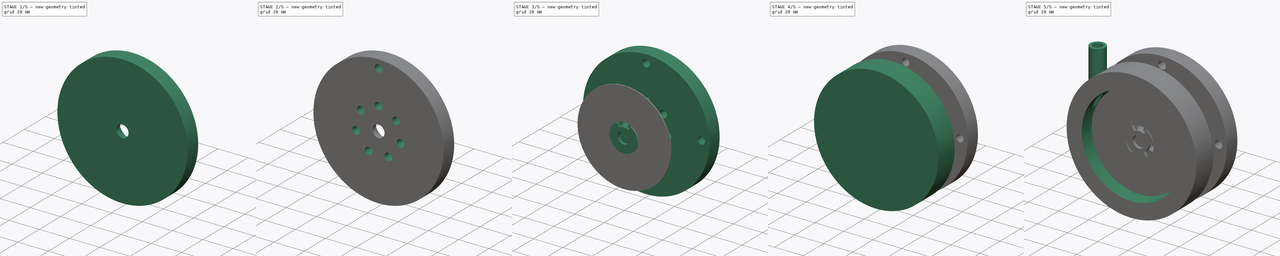
[diagram: build sequence overview — one tinted view per stage of 5, left to right]
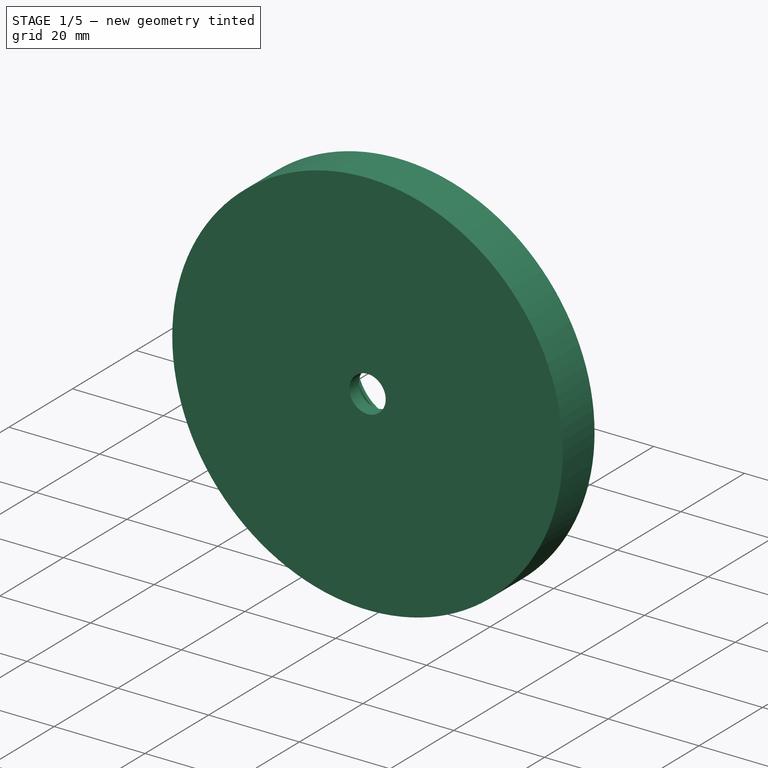
[diagram: stage 1 of 5 — iso view after this stage's code; geometry added in this stage tinted green]
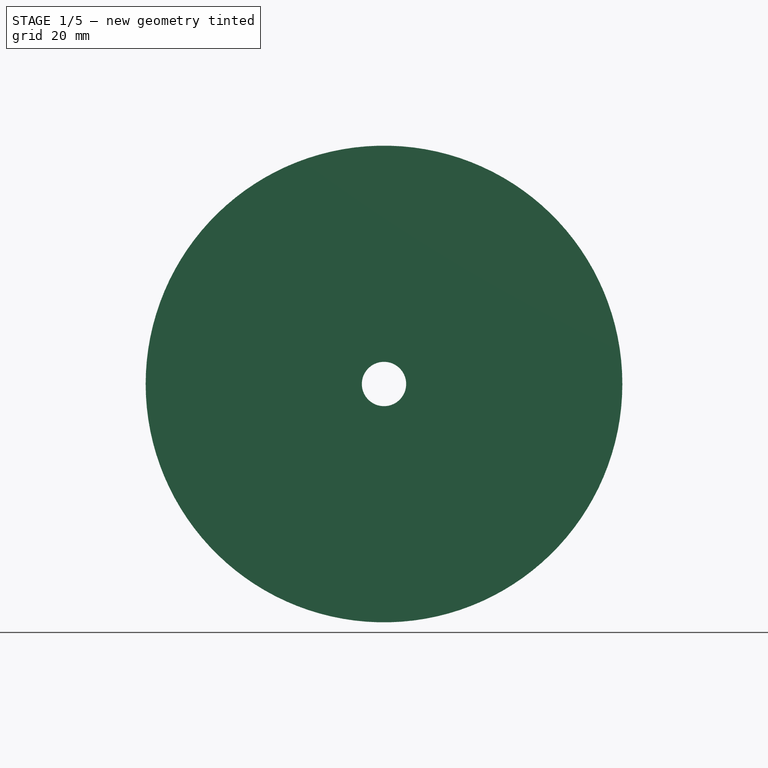
[diagram: stage 1 of 5 — front view after this stage's code; geometry added in this stage tinted green]
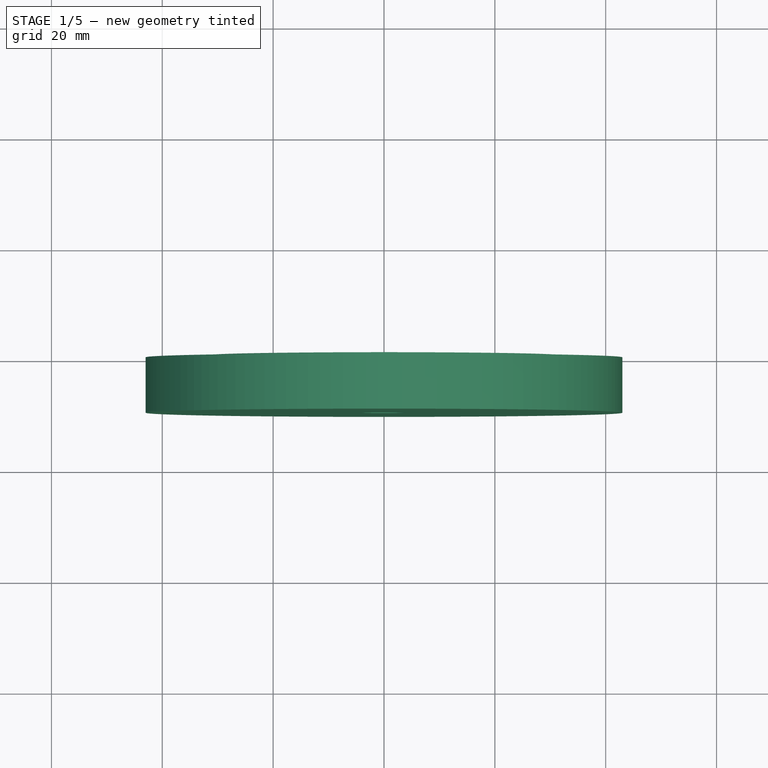
[diagram: stage 1 of 5 — top view after this stage's code; geometry added in this stage tinted green]
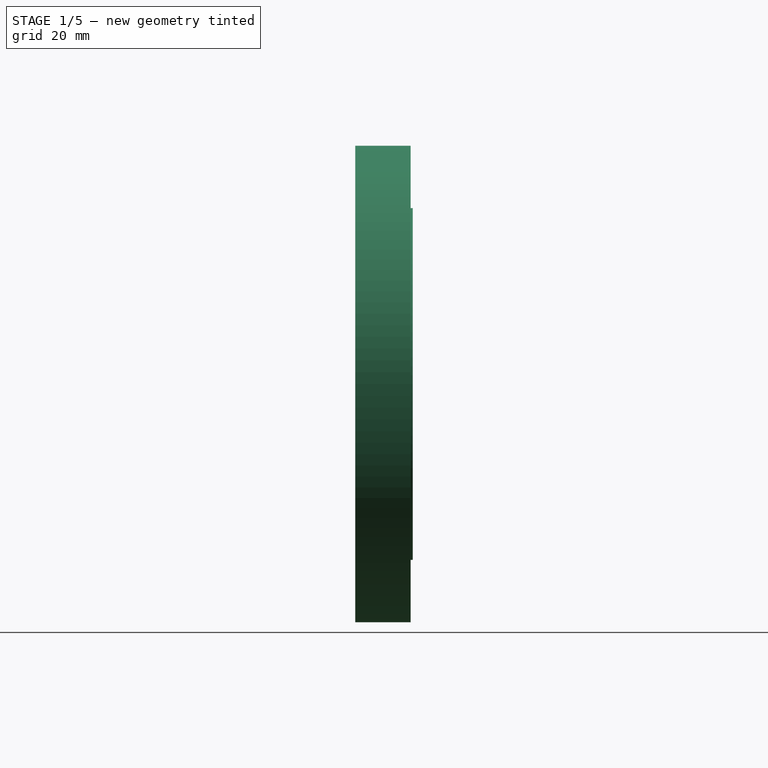
[diagram: stage 1 of 5 — right view after this stage's code; geometry added in this stage tinted green]
FCSTD DOCUMENT  (FreeCAD 0.17R13541 (Git))
Label: teslaturbine-ray
License: All rights reserved
LicenseURL: http://en.wikipedia.org/wiki/All_rights_reserved
objects: Raytracing::RayFeature×19, Sketcher::SketchObject×13, Part::Feature×12, PartDesign::Body×5, PartDesign::Pocket×5, PartDesign::ShapeBinder×4, PartDesign::Pad×4, PartDesign::PolarPattern×3, PartDesign::Groove×2, PartDesign::Revolution×1, Part::Mirroring×1, Raytracing::RayProject×1
note: 62 computed .brp shape members not serialized (recipe doc carries the construction recipe); baked Part::Feature solids carry a one-line shape summary decoded from their .brp

FEATURE [PartDesign::Body] Body002  label="Hub"
  Group = -> [ShapeBinder001,Sketch005,Pad001,Sketch006,Pocket001,PolarPattern,Sketch007,Groove001]
  Origin = -> Origin002
  Tip = -> Groove001
FEATURE [PartDesign::ShapeBinder] ShapeBinder002
  Placement = pos=(0,0,0) rot=(1,0,0;1.5708rad)
  Support = -> [Sketch]
FEATURE [Sketcher::SketchObject] Sketch008
  ExternalGeometry = -> [ShapeBinder002]
  MapMode = 5
  Placement = pos=(0,0,0) rot=(1,0,0;1.5708rad)
  Support = -> [XZ_Plane003]
  sketch-geometry (2):
    g0: Circle CenterX=0 CenterY=0 CenterZ=0 NormalX=0 NormalY=0 NormalZ=1 AngleXU=0 Radius=43
    g1: Circle CenterX=0 CenterY=0 CenterZ=0 NormalX=0 NormalY=0 NormalZ=1 AngleXU=0 Radius=4
  constraints (4):
    c: Coincident(g0,g-1)
    c: Equal(g0,g-3)
    c: Coincident(g1,g-1)
    c: Radius(g1) = 4
FEATURE [PartDesign::Pad] Pad002
  Length = 10
  Length2 = 100
  Placement = pos=(0,0,0) rot=(1,0,0;1.5708rad)
  Profile = -> Sketch008
  Type = 0
FEATURE [Sketcher::SketchObject] Sketch009
  MapMode = 5
  Placement = pos=(0,0,0) rot=(-1,0,0;1.5708rad)
  Support = -> [Pad002]
  sketch-geometry (1):
    g0: Circle CenterX=0 CenterY=0 CenterZ=0 NormalX=0 NormalY=0 NormalZ=1 AngleXU=0 Radius=11
  constraints (2):
    c: Coincident(g0,g-1)
    c: Radius(g0) = 11
FEATURE [PartDesign::Pocket] Pocket002
  BaseFeature = -> Pad002
  Length = 7
  Length2 = 100
  Placement = pos=(0,0,0) rot=(1,0,0;1.5708rad)
  Profile = -> Sketch009
  Type = 0
FEATURE [PartDesign::ShapeBinder] ShapeBinder003
  Support = -> [Sketch]
FEATURE [Sketcher::SketchObject] Sketch012
  ExternalGeometry = -> [ShapeBinder003]
  MapMode = 5
  Placement = pos=(0,0,0) rot=(1,0,0;1.5708rad)
  Support = -> [XZ_Plane004]
  sketch-geometry (2):
    g0: Circle CenterX=0 CenterY=0 CenterZ=0 NormalX=0 NormalY=0 NormalZ=1 AngleXU=0 Radius=31.75
    g1: Circle CenterX=0 CenterY=0 CenterZ=0 NormalX=0 NormalY=0 NormalZ=1 AngleXU=0 Radius=9.53
  constraints (4):
    c: Coincident(g1,g0)
    c: Equal(g1,g-3)
    c: Equal(g0,g-4)
    c: Coincident(g0,g-1)
FEATURE [PartDesign::Pad] Pad003
  Length = 0.75
  Length2 = 100
  Midplane = true
  Placement = pos=(0,0,0) rot=(1,0,0;1.5708rad)
  Profile = -> Sketch012
  Type = 0
FEATURE [PartDesign::Body] Body004  label="Platter"
  Group = -> [ShapeBinder003,Sketch012,Pad003]
  Origin = -> Origin004
  Tip = -> Pad003
FEATURE [Part::Feature] Body002001  label="Hub001"
  Placement = pos=(0,-2,0) rot=(0,0,1;0rad)
  shape: bbox 19.06 x 2 x 17.78 mm, 21 faces (baked)
FEATURE [Part::Feature] Body002002  label="Hub002"
  Placement = pos=(0,-4,0) rot=(0,0,1;0rad)
  shape: bbox 19.06 x 2 x 17.78 mm, 21 faces (baked)
FEATURE [Part::Feature] Body002003  label="Hub003"
  Placement = pos=(0,-6,0) rot=(0,0,1;0rad)
  shape: bbox 19.06 x 2 x 17.78 mm, 21 faces (baked)
FEATURE [Part::Feature] Body002004  label="Hub004"
  Placement = pos=(0,2,0) rot=(0,0,1;0rad)
  shape: bbox 19.06 x 2 x 17.78 mm, 21 faces (baked)
FEATURE [Part::Feature] Body002005  label="Hub005"
  Placement = pos=(0,4,0) rot=(0,0,1;0rad)
  shape: bbox 19.06 x 2 x 17.78 mm, 21 faces (baked)
FEATURE [Part::Feature] Body002006  label="Hub006"
  Placement = pos=(0,6,0) rot=(0,0,1;0rad)
  shape: bbox 19.06 x 2 x 17.78 mm, 21 faces (baked)
FEATURE [Part::Feature] Body004001  label="Platter001"
  Placement = pos=(0,-2,0) rot=(0,0,1;0rad)
  shape: bbox 63.5 x 0.75 x 63.5 mm, 4 faces (baked)
FEATURE [Part::Feature] Body004002  label="Platter002"
  Placement = pos=(0,-4,0) rot=(0,0,1;0rad)
  shape: bbox 63.5 x 0.75 x 63.5 mm, 4 faces (baked)
FEATURE [Part::Feature] Body004003  label="Platter003"
  Placement = pos=(0,-6,0) rot=(0,0,1;0rad)
  shape: bbox 63.5 x 0.75 x 63.5 mm, 4 faces (baked)
FEATURE [Part::Feature] Body004004  label="Platter004"
  Placement = pos=(0,2,0) rot=(0,0,1;0rad)
  shape: bbox 63.5 x 0.75 x 63.5 mm, 4 faces (baked)
FEATURE [Part::Feature] Body004005  label="Platter005"
  Placement = pos=(0,4,0) rot=(0,0,1;0rad)
  shape: bbox 63.5 x 0.75 x 63.5 mm, 4 faces (baked)
FEATURE [Part::Feature] Body004006  label="Platter006"
  Placement = pos=(0,6,0) rot=(0,0,1;0rad)
  shape: bbox 63.5 x 0.75 x 63.5 mm, 4 faces (baked)
FEATURE [Raytracing::RayFeature] Body_View
  Source = -> Body
  Transparency = 0
FEATURE [Raytracing::RayFeature] Body001_View
  Result = <blob: 57473 chars omitted>
  Source = -> Body001
  Transparency = 80
FEATURE [Raytracing::RayFeature] Body002005_View
  Result = <blob: 53966 chars omitted>
  Source = -> Body002005
  Transparency = 0
FEATURE [Raytracing::RayFeature] Body002006_View
  Result = <blob: 53955 chars omitted>
  Source = -> Body002006
  Transparency = 0
FEATURE [Raytracing::RayFeature] Body004001_View
  Result = <blob: 27784 chars omitted>
  Source = -> Body004001
  Transparency = 0
FEATURE [Raytracing::RayFeature] Body004002_View
  Result = <blob: 27784 chars omitted>
  Source = -> Body004002
  Transparency = 0
FEATURE [Raytracing::RayFeature] Body004003_View
  Result = <blob: 27784 chars omitted>
  Source = -> Body004003
  Transparency = 0
FEATURE [Raytracing::RayFeature] Body004004_View
  Result = <blob: 27432 chars omitted>
  Source = -> Body004004
  Transparency = 0
FEATURE [Raytracing::RayFeature] Body004005_View
  Result = <blob: 27432 chars omitted>
  Source = -> Body004005
  Transparency = 0
FEATURE [Raytracing::RayFeature] Body004006_View
  Result = <blob: 27432 chars omitted>
  Source = -> Body004006
  Transparency = 0
FEATURE [Raytracing::RayFeature] Part__Mirroring_View
  Result = <blob: 126867 chars omitted>
  Source = -> Part__Mirroring
  Transparency = 0
FEATURE [Raytracing::RayFeature] Body004_View
  Result = <blob: 27578 chars omitted>
  Source = -> Body004
  Transparency = 0
FEATURE [Raytracing::RayFeature] Body002001_View
  Result = <blob: 54595 chars omitted>
  Source = -> Body002001
  Transparency = 0
FEATURE [Raytracing::RayFeature] Body002002_View
  Result = <blob: 54584 chars omitted>
  Source = -> Body002002
  Transparency = 0
FEATURE [Raytracing::RayFeature] Body002003_View
  Result = <blob: 54583 chars omitted>
  Source = -> Body002003
  Transparency = 0
FEATURE [Raytracing::RayFeature] Body002004_View
  Result = <blob: 53960 chars omitted>
  Source = -> Body002004
  Transparency = 0
FEATURE [Raytracing::RayFeature] Body002_View
  Result = <blob: 54494 chars omitted>
  Source = -> Body002
  Transparency = 0
FEATURE [Raytracing::RayFeature] Pad003_View
  Result = <blob: 28408 chars omitted>
  Source = -> Pad003
  Transparency = 0
FEATURE [Raytracing::RayFeature] Body003_View
  Result = <blob: 128198 chars omitted>
  Source = -> Body003
  Transparency = 0
FEATURE [Raytracing::RayProject] PovProject
  Camera = // declares position and view direction\n\n// Generated by FreeCAD (http://www.freecadweb.org/)\n#declare cam_location =  <131.106,131.245,-123.218>;\n#declare cam_look_at  = <11.5293,11.6676,-3.6408>;\n#declare cam_sky      = <-0.408248,0.816497,0.408248>;\n#declare cam_angle    = 45; \ncamera {\n  location  cam_location\n  look_at   cam_look_at\n  sky       cam_sky\n  angle     cam_angle \n  right x*800/600\n}
  Group = -> [Body_View,Body001_View,Body002005_View,Body002006_View,Body004001_View,Body004002_View,Body004003_View,Body004004_View,Body004005_View,Body004006_View,Part__Mirroring_View,Body004_View,Body002001_View,Body002002_View,Body002003_View,Body002004_View,Body002_View,Pad003_View,Body003_View]
  Template = /Applications/FreeCAD.app/Contents/data/Mod/Raytracing/Templates/RadiosityOutdoorHQ.pov
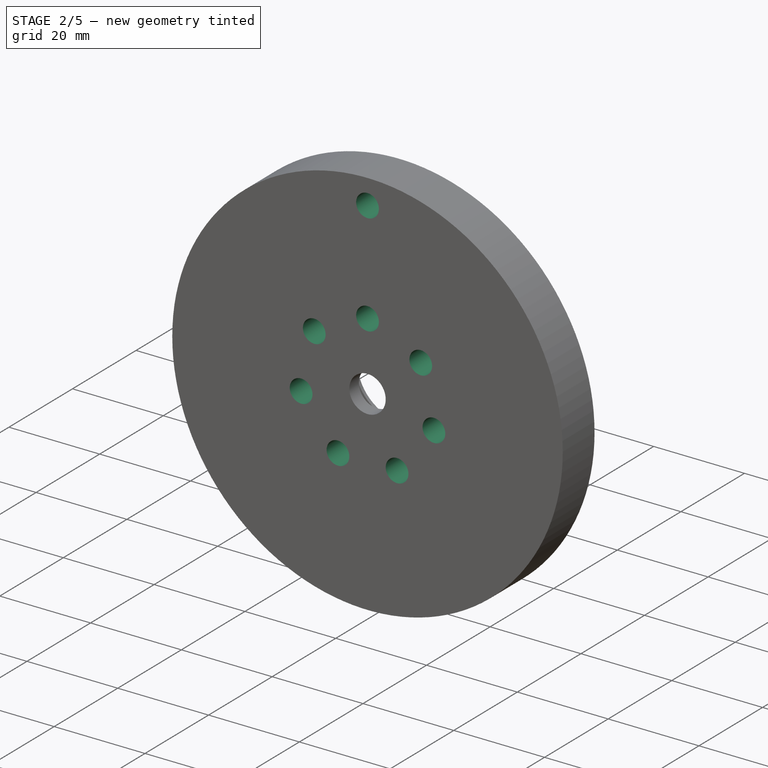
[diagram: stage 2 of 5 — iso view after this stage's code; geometry added in this stage tinted green]
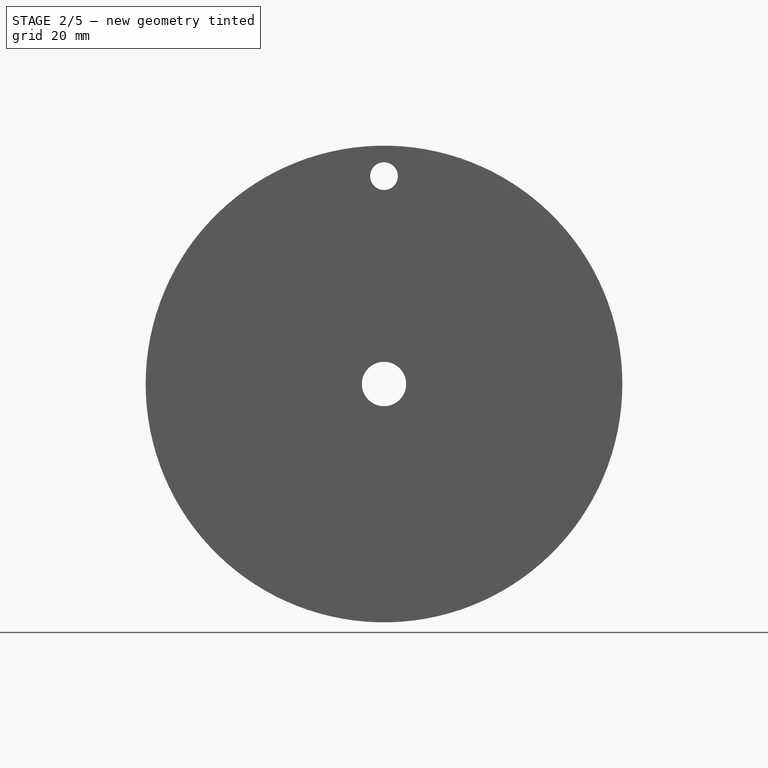
[diagram: stage 2 of 5 — front view after this stage's code; geometry added in this stage tinted green]
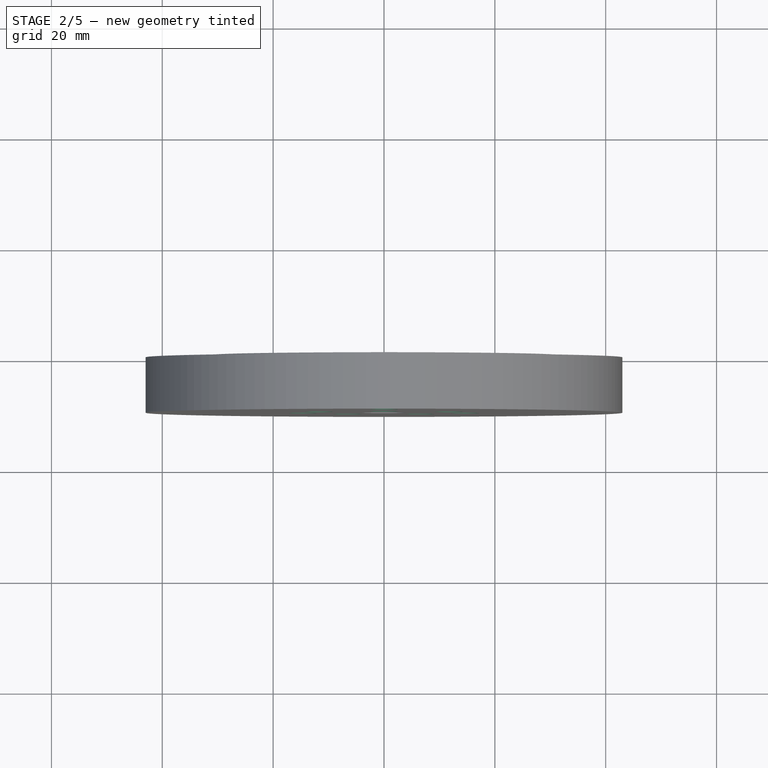
[diagram: stage 2 of 5 — top view after this stage's code; geometry added in this stage tinted green]
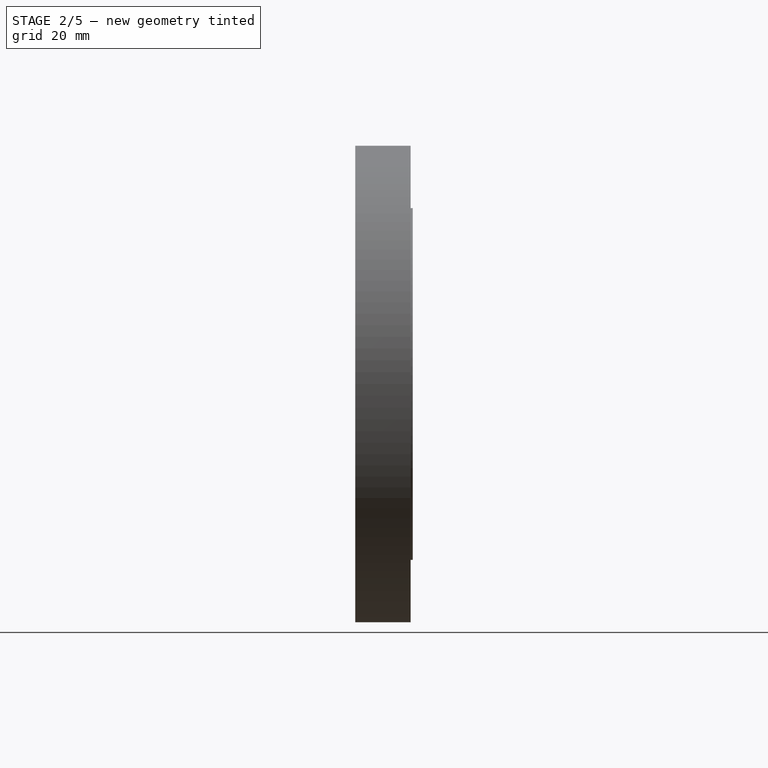
[diagram: stage 2 of 5 — right view after this stage's code; geometry added in this stage tinted green]
FEATURE [Sketcher::SketchObject] Sketch010
  MapMode = 5
  Placement = pos=(0,-10,0) rot=(1,0,0;1.5708rad)
  Support = -> [Pocket002]
  sketch-geometry (1):
    g0: Circle CenterX=0 CenterY=15 CenterZ=0 NormalX=0 NormalY=0 NormalZ=1 AngleXU=0 Radius=2.5
  constraints (3):
    c: PointOnObject(g0,g-2)
    c: DistanceY(g0) = 15
    c: Radius(g0) = 2.5
FEATURE [PartDesign::Pocket] Pocket003
  BaseFeature = -> Pocket002
  Length = 5
  Length2 = 100
  Placement = pos=(0,0,0) rot=(1,0,0;1.5708rad)
  Profile = -> Sketch010
  Type = 1
FEATURE [PartDesign::PolarPattern] PolarPattern001
  Angle = 360
  Axis = -> Sketch010 [N_Axis]
  BaseFeature = -> Pocket003
  Occurrences = 7
  Originals = -> [Pocket003]
  Placement = pos=(0,0,0) rot=(1,0,0;1.5708rad)
FEATURE [Sketcher::SketchObject] Sketch011
  MapMode = 5
  Placement = pos=(0,-10,0) rot=(1,0,0;1.5708rad)
  Support = -> [PolarPattern001]
  sketch-geometry (1):
    g0: Circle CenterX=0 CenterY=37.5 CenterZ=0 NormalX=0 NormalY=0 NormalZ=1 AngleXU=0 Radius=2.5
  constraints (3):
    c: PointOnObject(g0,g-2)
    c: Radius(g0) = 2.5
    c: DistanceY(g0) = 37.5
FEATURE [PartDesign::Pocket] Pocket004
  BaseFeature = -> PolarPattern001
  Length = 5
  Length2 = 100
  Placement = pos=(0,0,0) rot=(1,0,0;1.5708rad)
  Profile = -> Sketch011
  Type = 1
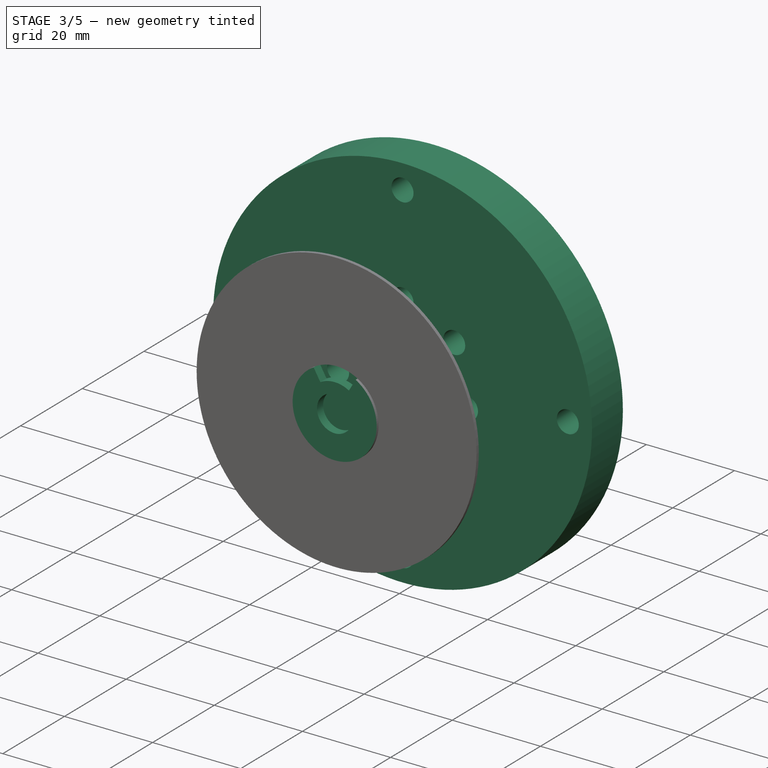
[diagram: stage 3 of 5 — iso view after this stage's code; geometry added in this stage tinted green]
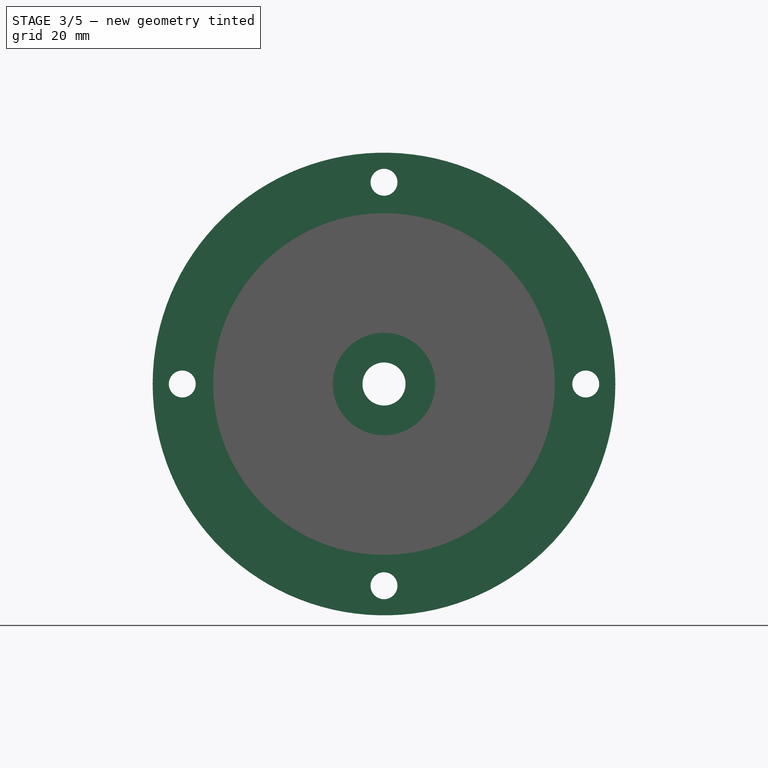
[diagram: stage 3 of 5 — front view after this stage's code; geometry added in this stage tinted green]
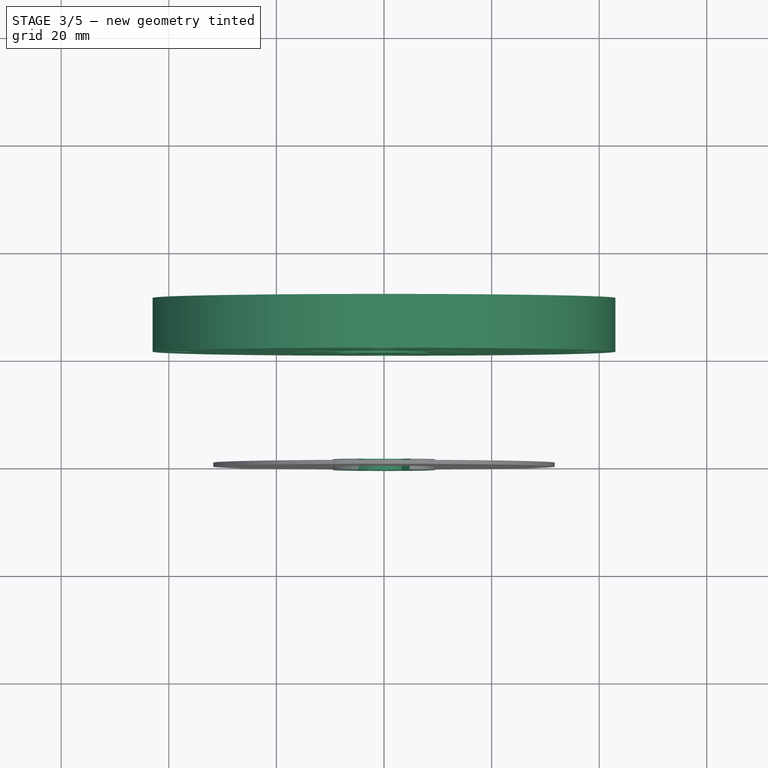
[diagram: stage 3 of 5 — top view after this stage's code; geometry added in this stage tinted green]
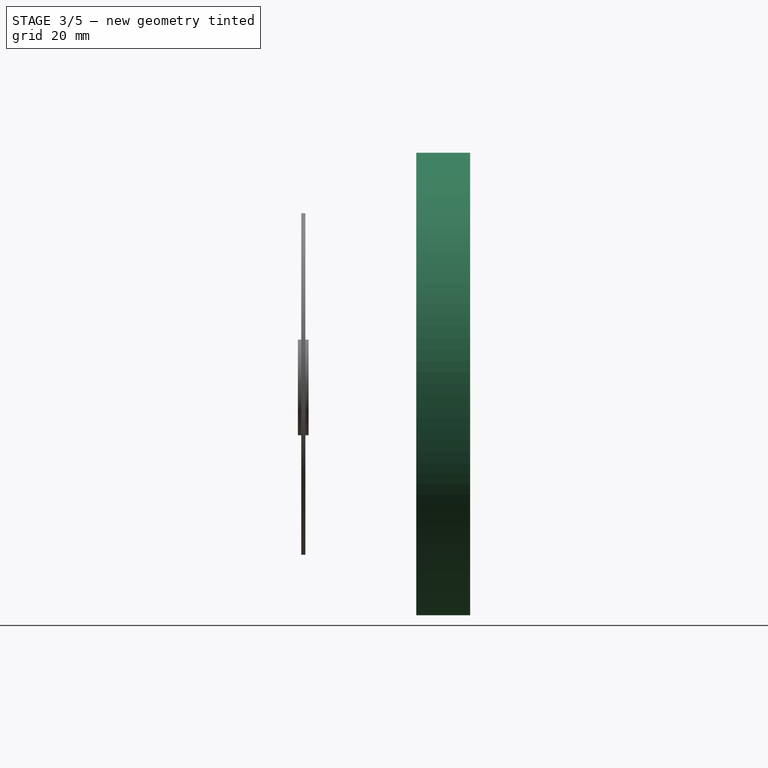
[diagram: stage 3 of 5 — right view after this stage's code; geometry added in this stage tinted green]
FEATURE [PartDesign::Body] Body001  label="Housing"
  Group = -> [ShapeBinder,Sketch001,Pad,Sketch002,Revolution,Sketch003,Pocket,Sketch004,Groove]
  Origin = -> Origin001
  Tip = -> Groove
FEATURE [PartDesign::ShapeBinder] ShapeBinder001
  Placement = pos=(0,0,0) rot=(1,0,0;1.5708rad)
  Support = -> [Sketch]
FEATURE [Sketcher::SketchObject] Sketch005
  ExternalGeometry = -> [ShapeBinder001]
  MapMode = 5
  Placement = pos=(0,0,0) rot=(1,0,0;1.5708rad)
  Support = -> [XZ_Plane002]
  sketch-geometry (2):
    g0: Circle CenterX=0 CenterY=0 CenterZ=0 NormalX=0 NormalY=0 NormalZ=1 AngleXU=0 Radius=9.53
    g1: Circle CenterX=0 CenterY=0 CenterZ=0 NormalX=0 NormalY=0 NormalZ=1 AngleXU=0 Radius=4
  constraints (4):
    c: Coincident(g0,g-1)
    c: Equal(g0,g-3)
    c: Coincident(g1,g-1)
    c: Radius(g1) = 4
FEATURE [PartDesign::Pad] Pad001
  Length = 2
  Length2 = 100
  Midplane = true
  Placement = pos=(0,0,0) rot=(1,0,0;1.5708rad)
  Profile = -> Sketch005
  Type = 0
FEATURE [Sketcher::SketchObject] Sketch006
  ExternalGeometry = -> [ShapeBinder001]
  MapMode = 5
  Placement = pos=(0,0,0) rot=(1,0,0;1.5708rad)
  Support = -> [XZ_Plane002]
  sketch-geometry (4):
    g0: ArcOfCircle CenterX=0 CenterY=0 CenterZ=0 NormalX=0 NormalY=0 NormalZ=1 AngleXU=0 Radius=9.53 StartAngle=1.0472 EndAngle=2.0944
    g1: ArcOfCircle CenterX=0 CenterY=0 CenterZ=0 NormalX=0 NormalY=0 NormalZ=1 AngleXU=0 Radius=6.5 StartAngle=1.0472 EndAngle=2.0944
    g2: LineSegment StartX=4.765 StartY=8.25322 StartZ=0 EndX=3.25 EndY=5.62917 EndZ=0
    g3: LineSegment StartX=-4.765 StartY=8.25322 StartZ=0 EndX=-3.25 EndY=5.62917 EndZ=0
  constraints (12):
    c: Coincident(g0,g-1)
    c: PointOnObject(g0,g-3)
    c: Symmetric(g0,g0,g-2)
    c: Coincident(g1,g-1)
    c: Coincident(g2,g0)
    c: Coincident(g2,g1)
    c: Coincident(g3,g0)
    c: Coincident(g3,g1)
    c: Symmetric(g1,g1,g-2)
    c: Radius(g1) = 6.5
    c: Angle(g2,g3) = 1.0472
    c: Perpendicular(g-3,g3)
FEATURE [PartDesign::Pocket] Pocket001
  BaseFeature = -> Pad001
  Length = 5
  Length2 = 100
  Midplane = true
  Placement = pos=(0,0,0) rot=(1,0,0;1.5708rad)
  Profile = -> Sketch006
  Type = 1
FEATURE [PartDesign::PolarPattern] PolarPattern002
  Angle = 360
  Axis = -> Sketch011 [N_Axis]
  BaseFeature = -> Pocket004
  Occurrences = 4
  Originals = -> [Pocket004]
  Placement = pos=(0,0,0) rot=(1,0,0;1.5708rad)
FEATURE [PartDesign::Body] Body003  label="SideCap"
  Group = -> [Sketch008,ShapeBinder002,Pad002,Sketch009,Pocket002,Sketch010,Pocket003,PolarPattern001,Sketch011,Pocket004,PolarPattern002]
  Origin = -> Origin003
  Placement = pos=(0,-21,0) rot=(0,0,1;0rad)
  Tip = -> PolarPattern002
FEATURE [Part::Mirroring] Part__Mirroring  label="SideCap (Mirror #1)"
  Base = (0,0,0)
  Normal = (0,1,0)
  Source = -> Body003
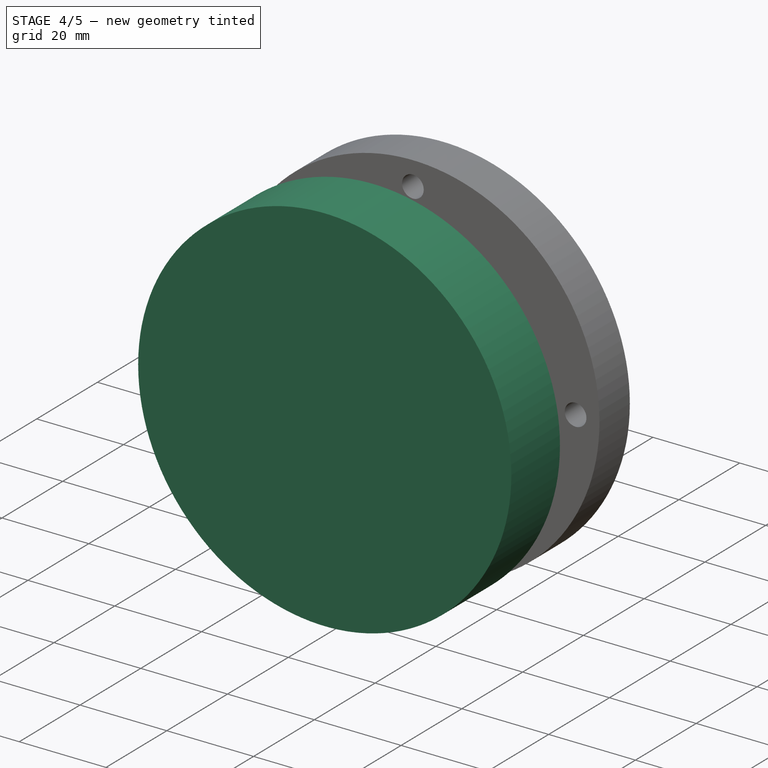
[diagram: stage 4 of 5 — iso view after this stage's code; geometry added in this stage tinted green]
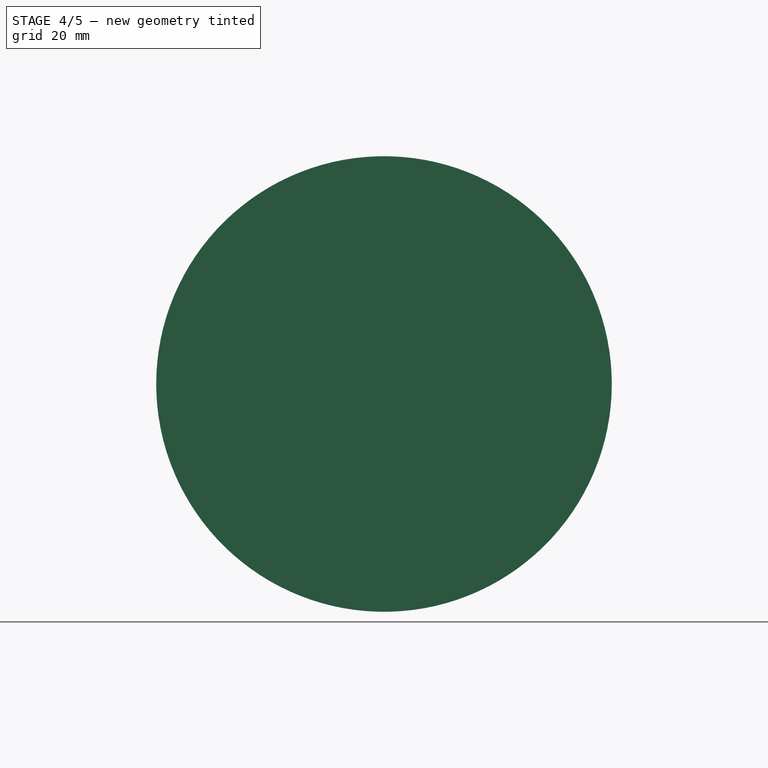
[diagram: stage 4 of 5 — front view after this stage's code; geometry added in this stage tinted green]
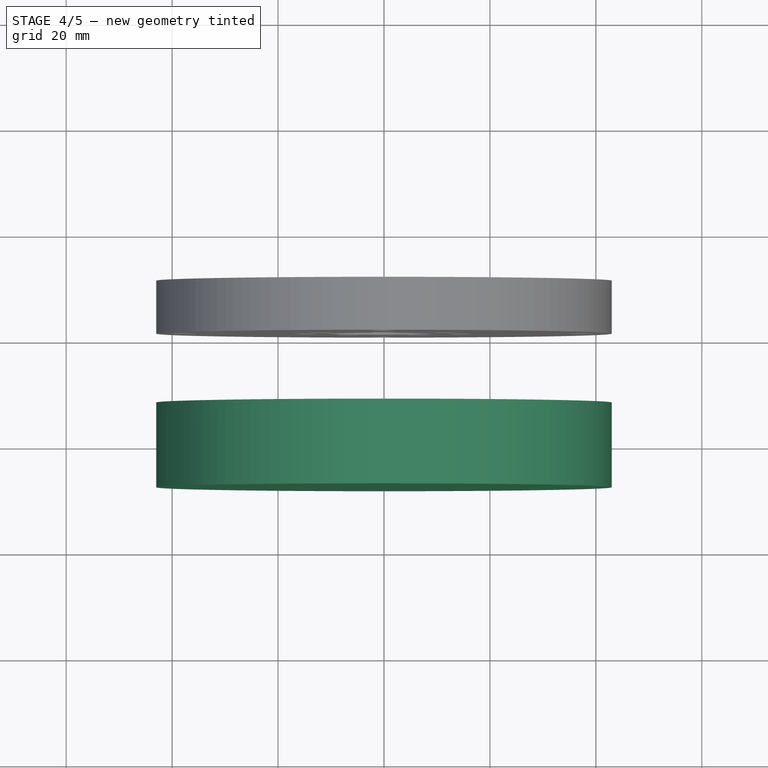
[diagram: stage 4 of 5 — top view after this stage's code; geometry added in this stage tinted green]
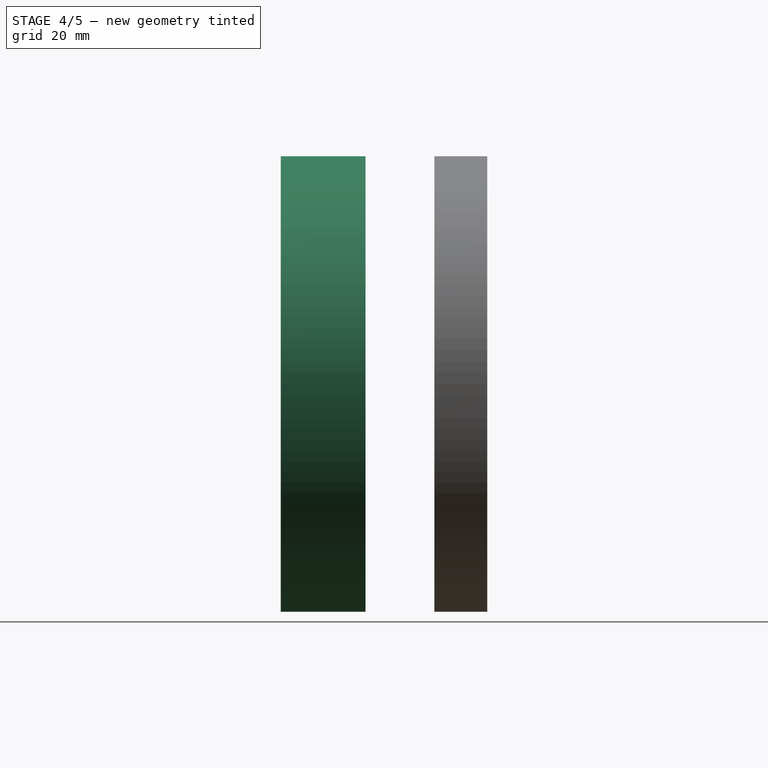
[diagram: stage 4 of 5 — right view after this stage's code; geometry added in this stage tinted green]
FEATURE [Sketcher::SketchObject] Sketch
  MapMode = 5
  Placement = pos=(0,0,0) rot=(1,0,0;1.5708rad)
  Support = -> [XZ_Plane]
  sketch-geometry (11):
    g0: Circle CenterX=0 CenterY=0 CenterZ=0 NormalX=0 NormalY=0 NormalZ=1 AngleXU=0 Radius=31.75
    g1: Circle CenterX=0 CenterY=0 CenterZ=0 NormalX=0 NormalY=0 NormalZ=1 AngleXU=0 Radius=9.53
    g2: Circle CenterX=0 CenterY=0 CenterZ=0 NormalX=0 NormalY=0 NormalZ=1 AngleXU=0 Radius=33
    g3: LineSegment StartX=-33 StartY=0 StartZ=0 EndX=-31.75 EndY=0 EndZ=0
    g4: Circle CenterX=0 CenterY=0 CenterZ=0 NormalX=0 NormalY=0 NormalZ=1 AngleXU=0 Radius=43
    g5: LineSegment StartX=-43 StartY=0 StartZ=0 EndX=-33 EndY=0 EndZ=0
    g6: LineSegment StartX=-33 StartY=0 StartZ=0 EndX=-23 EndY=0 EndZ=0
    g7: LineSegment StartX=-23 StartY=0 StartZ=0 EndX=-23 EndY=50 EndZ=0
    g8: LineSegment StartX=-23 StartY=50 StartZ=0 EndX=-33 EndY=50 EndZ=0
    g9: LineSegment StartX=-33 StartY=50 StartZ=0 EndX=-33 EndY=0 EndZ=0
    g10: LineSegment StartX=-28 StartY=50 StartZ=0 EndX=-28 EndY=0 EndZ=0
  constraints (30):
    c: Coincident(g0,g-1)
    c: Coincident(g1,g-1)
    c: Radius(g1) = 9.53
    c: Radius(g0) = 31.75
    c: Coincident(g2,g-1)
    c: PointOnObject(g3,g2)
    c: PointOnObject(g3,g0)
    c: Horizontal(g3)
    c: PointOnObject(g3,g-1)
    c: DistanceX(g3,g3) = 1.25
    c: Coincident(g4,g-1)
    c: PointOnObject(g5,g4)
    c: Coincident(g5,g3)
    c: Horizontal(g5)
    c: DistanceX(g5,g5) = 10
    c: Coincident(g6,g7)
    c: Coincident(g7,g8)
    c: Coincident(g8,g9)
    c: Coincident(g9,g6)
    c: Horizontal(g6)
    c: Horizontal(g8)
    c: Vertical(g7)
    c: Vertical(g9)
    c: Coincident(g6,g3)
    c: DistanceY(g9,g9) = 50
    c: DistanceX(g8,g8) = 10
    c: PointOnObject(g10,g8)
    c: PointOnObject(g10,g6)
    c: Vertical(g10)
    c: Symmetric(g8,g7,g10)
FEATURE [PartDesign::Body] Body  label="Master"
  Group = -> [Sketch]
  Origin = -> Origin
FEATURE [PartDesign::ShapeBinder] ShapeBinder
  Support = -> [Sketch]
FEATURE [Sketcher::SketchObject] Sketch001
  ExternalGeometry = -> [ShapeBinder]
  MapMode = 5
  Placement = pos=(0,0,0) rot=(1,0,0;1.5708rad)
  Support = -> [XZ_Plane001]
  sketch-geometry (1):
    g0: Circle CenterX=0 CenterY=0 CenterZ=0 NormalX=0 NormalY=0 NormalZ=1 AngleXU=0 Radius=43
  constraints (2):
    c: Coincident(g0,g-1)
    c: Equal(g0,g-3)
FEATURE [PartDesign::Pad] Pad
  Length = 16
  Length2 = 100
  Midplane = true
  Placement = pos=(0,0,0) rot=(1,0,0;1.5708rad)
  Profile = -> Sketch001
  Type = 0
FEATURE [PartDesign::PolarPattern] PolarPattern
  Angle = 360
  Axis = -> Sketch006 [N_Axis]
  BaseFeature = -> Pocket001
  Occurrences = 3
  Originals = -> [Pocket001]
  Placement = pos=(0,0,0) rot=(1,0,0;1.5708rad)
FEATURE [Sketcher::SketchObject] Sketch007
  MapMode = 5
  Placement = pos=(0,0,0) rot=(0.57735,0.57735,0.57735;2.0944rad)
  Support = -> [YZ_Plane002]
  sketch-geometry (1):
    g0: Circle CenterX=0 CenterY=9.7 CenterZ=0 NormalX=0 NormalY=0 NormalZ=1 AngleXU=0 Radius=0.5
  constraints (3):
    c: PointOnObject(g0,g-2)
    c: Radius(g0) = 0.5
    c: DistanceY(g0) = 9.7
FEATURE [PartDesign::Groove] Groove001
  Angle = 360
  Axis = (0,1,0)
  Base = (0,0,0)
  BaseFeature = -> PolarPattern
  Placement = pos=(0,0,0) rot=(1,0,0;1.5708rad)
  Profile = -> Sketch007
  ReferenceAxis = -> Y_Axis002
  Reversed = true
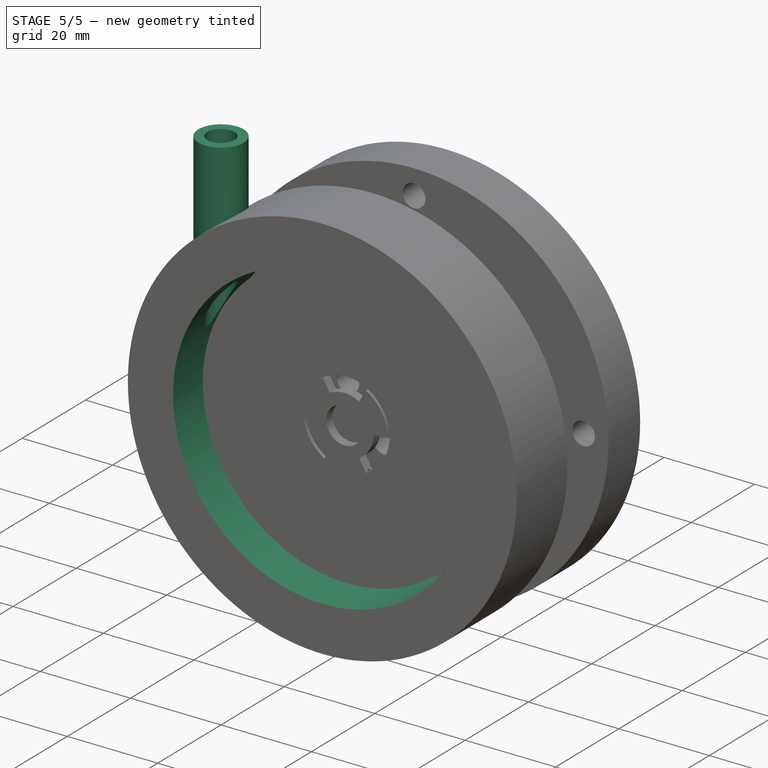
[diagram: stage 5 of 5 — iso view after this stage's code; geometry added in this stage tinted green]
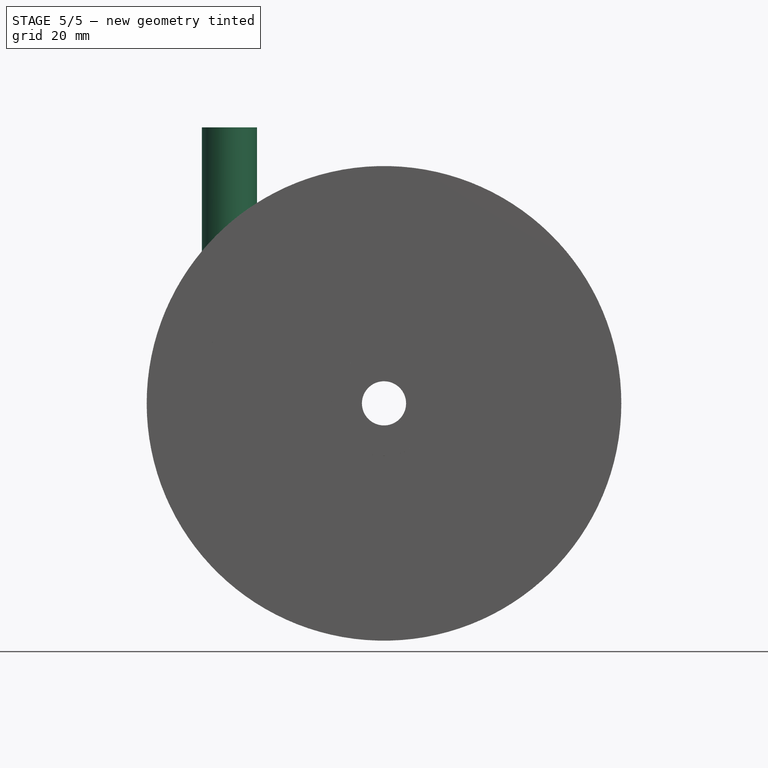
[diagram: stage 5 of 5 — front view after this stage's code; geometry added in this stage tinted green]
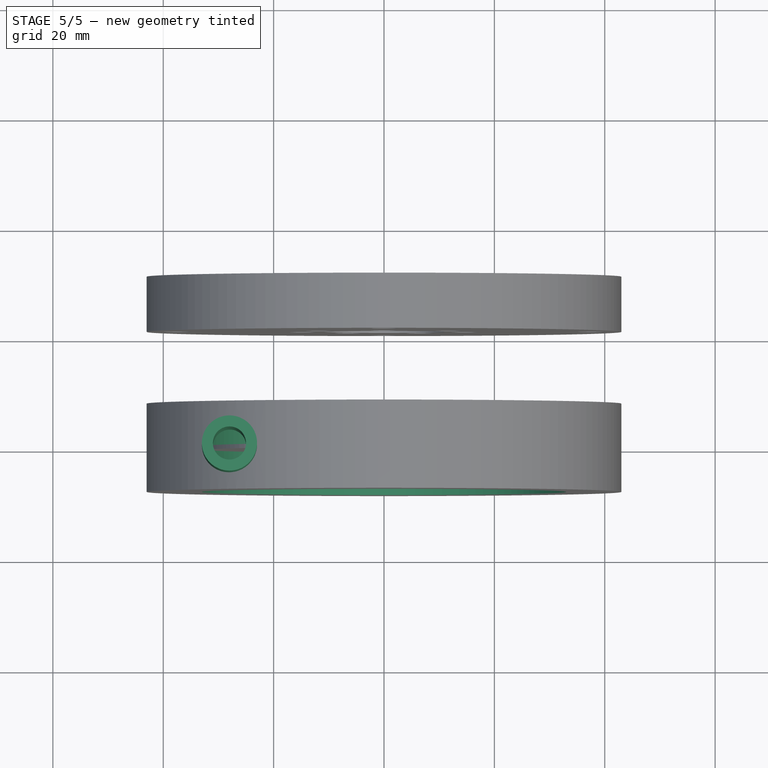
[diagram: stage 5 of 5 — top view after this stage's code; geometry added in this stage tinted green]
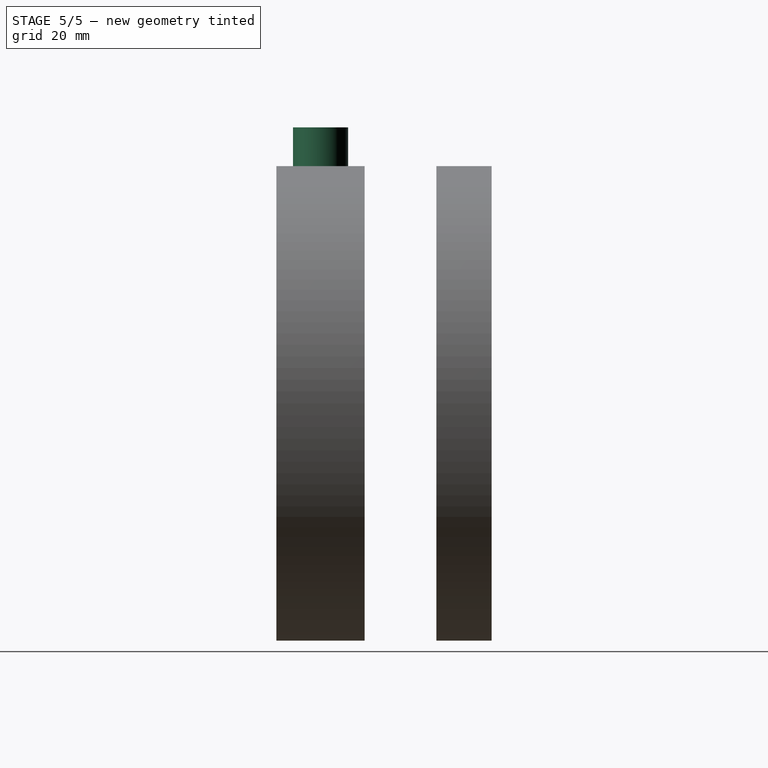
[diagram: stage 5 of 5 — right view after this stage's code; geometry added in this stage tinted green]
FEATURE [Sketcher::SketchObject] Sketch002
  ExternalGeometry = -> [ShapeBinder]
  MapMode = 5
  Placement = pos=(0,0,0) rot=(1,0,0;1.5708rad)
  Support = -> [XZ_Plane001]
  sketch-geometry (4):
    g0: LineSegment StartX=-33 StartY=50 StartZ=0 EndX=-28 EndY=50 EndZ=0
    g1: LineSegment StartX=-28 StartY=50 StartZ=0 EndX=-28 EndY=0 EndZ=0
    g2: LineSegment StartX=-28 StartY=0 StartZ=0 EndX=-33 EndY=0 EndZ=0
    g3: LineSegment StartX=-33 StartY=0 StartZ=0 EndX=-33 EndY=50 EndZ=0
  constraints (10):
    c: Coincident(g0,g1)
    c: Coincident(g1,g2)
    c: Coincident(g2,g3)
    c: Coincident(g3,g0)
    c: Horizontal(g0)
    c: Horizontal(g2)
    c: Vertical(g1)
    c: Vertical(g3)
    c: Coincident(g0,g-3)
    c: Coincident(g1,g-5)
FEATURE [PartDesign::Revolution] Revolution
  Angle = 360
  Axis = (0,0,-1)
  Base = (-28,0,50)
  BaseFeature = -> Pad
  Placement = pos=(0,0,0) rot=(1,0,0;1.5708rad)
  Profile = -> Sketch002
  ReferenceAxis = -> ShapeBinder [Edge7]
FEATURE [Sketcher::SketchObject] Sketch003
  ExternalGeometry = -> [ShapeBinder]
  MapMode = 5
  Placement = pos=(0,0,0) rot=(1,0,0;1.5708rad)
  Support = -> [XZ_Plane001]
  sketch-geometry (1):
    g0: Circle CenterX=0 CenterY=0 CenterZ=0 NormalX=0 NormalY=0 NormalZ=1 AngleXU=0 Radius=33
  constraints (2):
    c: Coincident(g0,g-1)
    c: PointOnObject(g-3,g0)
FEATURE [PartDesign::Pocket] Pocket
  BaseFeature = -> Revolution
  Length = 5
  Length2 = 100
  Midplane = true
  Placement = pos=(0,0,0) rot=(1,0,0;1.5708rad)
  Profile = -> Sketch003
  Type = 1
FEATURE [Sketcher::SketchObject] Sketch004
  ExternalGeometry = -> [ShapeBinder]
  MapMode = 5
  Placement = pos=(0,0,0) rot=(1,0,0;1.5708rad)
  Support = -> [XZ_Plane001]
  sketch-geometry (4):
    g0: LineSegment StartX=-28 StartY=50 StartZ=0 EndX=-25 EndY=50 EndZ=0
    g1: LineSegment StartX=-25 StartY=50 StartZ=0 EndX=-25 EndY=0 EndZ=0
    g2: LineSegment StartX=-25 StartY=0 StartZ=0 EndX=-28 EndY=0 EndZ=0
    g3: LineSegment StartX=-28 StartY=0 StartZ=0 EndX=-28 EndY=50 EndZ=0
  constraints (12):
    c: Coincident(g0,g1)
    c: Coincident(g1,g2)
    c: Coincident(g2,g3)
    c: Coincident(g3,g0)
    c: Horizontal(g0)
    c: Horizontal(g2)
    c: Vertical(g1)
    c: Vertical(g3)
    c: PointOnObject(g-3,g0)
    c: PointOnObject(g-4,g2)
    c: Coincident(g0,g-3)
    c: DistanceX(g0,g0) = 3
FEATURE [PartDesign::Groove] Groove
  Angle = 360
  Axis = (0,0,-1)
  Base = (-28,0,50)
  BaseFeature = -> Pocket
  Placement = pos=(0,0,0) rot=(1,0,0;1.5708rad)
  Profile = -> Sketch004
  ReferenceAxis = -> ShapeBinder [Edge7]
  Reversed = true
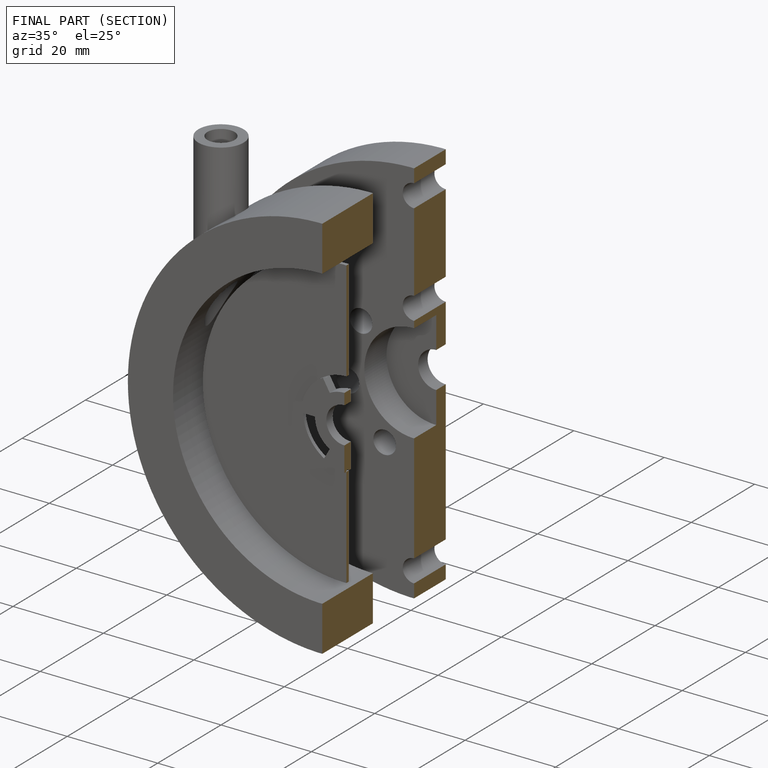
[diagram: finished part — half-section view (interior)]
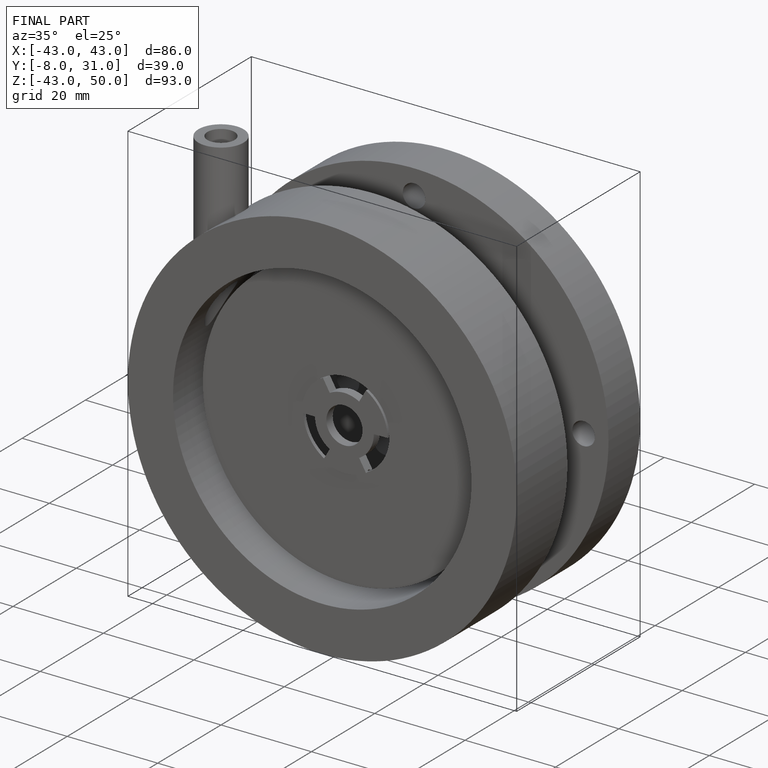
[diagram: finished part — iso view with bounding-box wireframe]
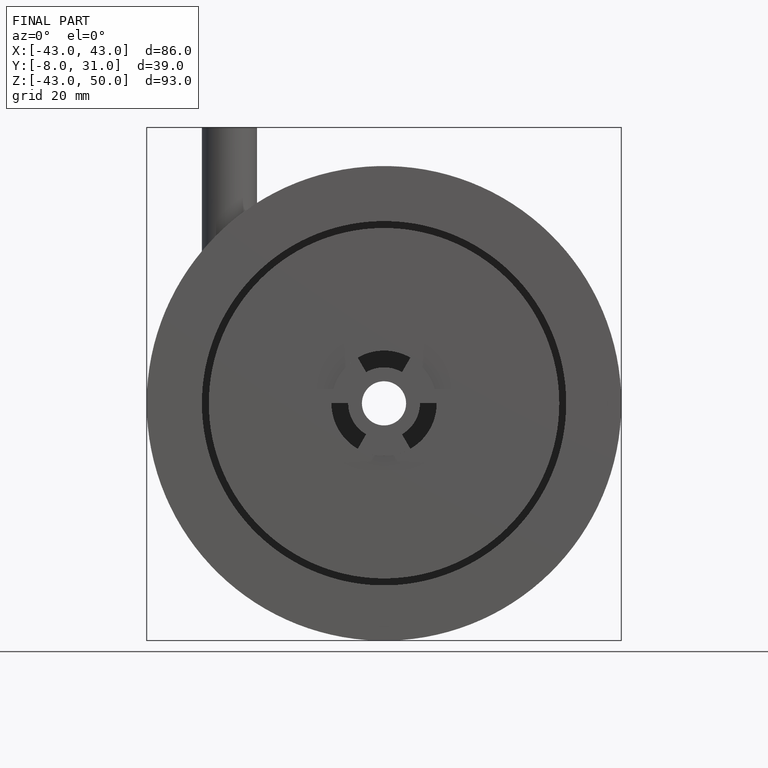
[diagram: finished part — front view with bounding-box wireframe]
